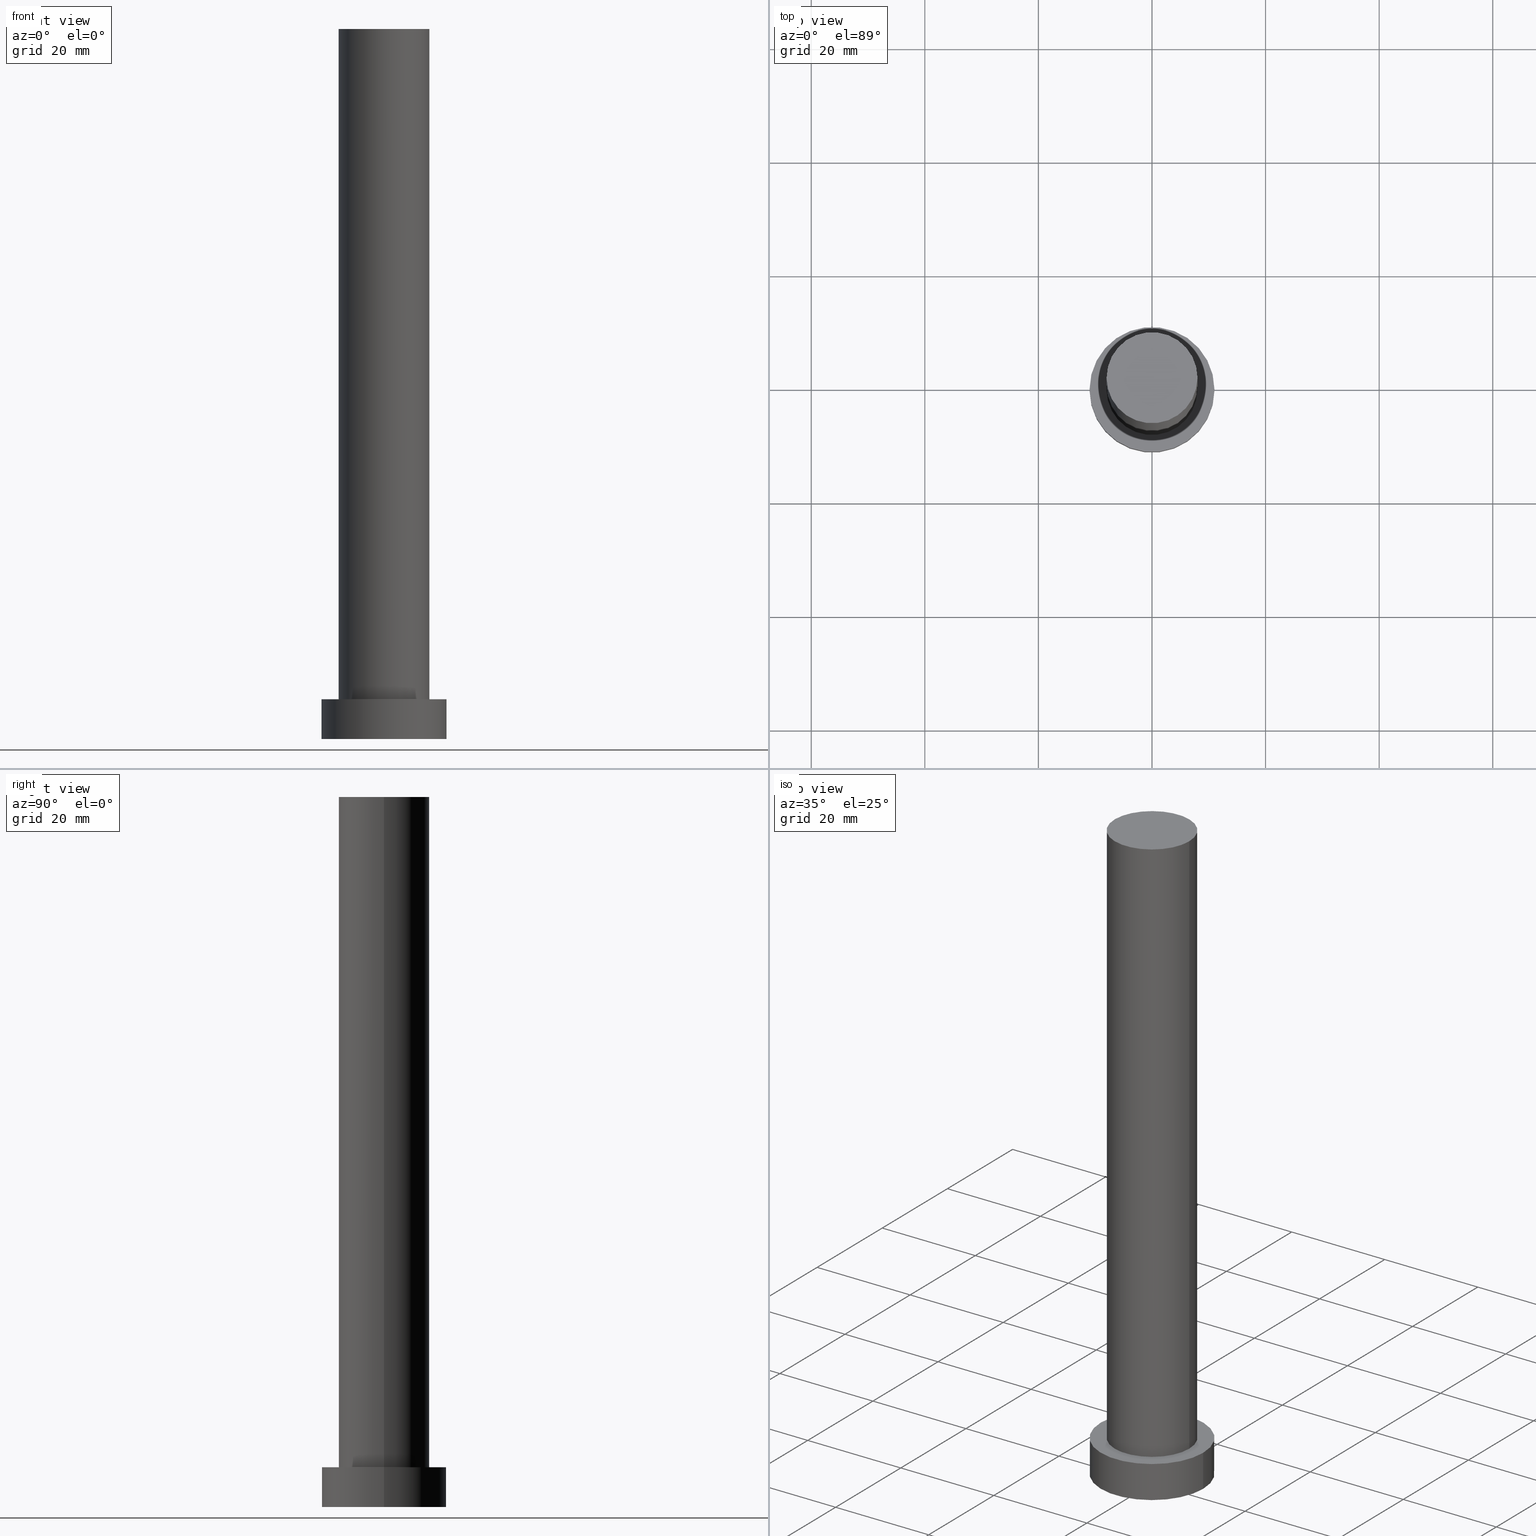
[diagram: canonical four-view strip — front | top / right | iso, engineering-drawing reading convention]
A machine part, canonical four-view strip (front | top / right | iso — engineering-drawing reading convention). The complete STEP part file that produces these views, byte-faithful:
ISO-10303-21;
HEADER;
FILE_DESCRIPTION (( 'STEP AP203' ),
    '1' );
FILE_NAME ('8c6f.STEP',
    '2023-02-13T09:21:37',
    ( '' ),
    ( '' ),
    'SwSTEP 2.0',
    'SolidWorks 2019',
    '' );
FILE_SCHEMA (( 'CONFIG_CONTROL_DESIGN' ));
ENDSEC;

DATA;
#1 = CARTESIAN_POINT ( 'NONE',  ( 0.000000000000000000, 0.000000000000000000, 0.000000000000000000 ) ) ;
#2 = VERTEX_POINT ( 'NONE', #116 ) ;
#3 = APPLICATION_CONTEXT ( 'configuration controlled 3d designs of mechanical parts and assemblies' ) ;
#4 = EDGE_CURVE ( 'NONE', #165, #127, #247, .T. ) ;
#5 =( NAMED_UNIT ( * ) SI_UNIT ( $, .STERADIAN. ) SOLID_ANGLE_UNIT ( ) );
#6 = DIRECTION ( 'NONE',  ( 1.000000000000000000, 0.000000000000000000, 0.000000000000000000 ) ) ;
#7 = DIRECTION ( 'NONE',  ( -0.000000000000000000, -0.000000000000000000, -1.000000000000000000 ) ) ;
#8 = EDGE_CURVE ( 'NONE', #167, #132, #249, .T. ) ;
#9 = DIRECTION ( 'NONE',  ( -0.000000000000000000, -0.000000000000000000, -1.000000000000000000 ) ) ;
#10 = DATE_AND_TIME ( #53, #186 ) ;
#11 = COORDINATED_UNIVERSAL_TIME_OFFSET ( 1, 0, .AHEAD. ) ;
#12 = ORIENTED_EDGE ( 'NONE', *, *, #8, .T. ) ;
#13 = DIRECTION ( 'NONE',  ( 0.000000000000000000, 0.000000000000000000, 1.000000000000000000 ) ) ;
#14 = PERSON_AND_ORGANIZATION_ROLE ( 'design_owner' ) ;
#15 = AXIS2_PLACEMENT_3D ( 'NONE', #38, #183, #18 ) ;
#16 = ORIENTED_EDGE ( 'NONE', *, *, #153, .F. ) ;
#17 = APPROVAL ( #150, 'NEUR�EN�' ) ;
#18 = DIRECTION ( 'NONE',  ( 1.000000000000000000, 0.000000000000000000, 0.000000000000000000 ) ) ;
#19 = CARTESIAN_POINT ( 'NONE',  ( -8.000000000000000000, 0.000000000000000000, 125.0000000000000000 ) ) ;
#20 = AXIS2_PLACEMENT_3D ( 'NONE', #120, #28, #82 ) ;
#21 = CARTESIAN_POINT ( 'NONE',  ( 0.000000000000000000, 0.000000000000000000, 0.000000000000000000 ) ) ;
#22 = CIRCLE ( 'NONE', #20, 8.000000000000000000 ) ;
#23 = ORIENTED_EDGE ( 'NONE', *, *, #246, .F. ) ;
#24 = EDGE_CURVE ( 'NONE', #165, #2, #95, .T. ) ;
#25 = LOCAL_TIME ( 10, 21, 37.00000000000000000, #216 ) ;
#26 = CC_DESIGN_PERSON_AND_ORGANIZATION_ASSIGNMENT ( #152, #193, ( #90 ) ) ;
#27 = DATE_AND_TIME ( #64, #25 ) ;
#28 = DIRECTION ( 'NONE',  ( 0.000000000000000000, 0.000000000000000000, 1.000000000000000000 ) ) ;
#29 = EDGE_LOOP ( 'NONE', ( #151, #23, #253, #189 ) ) ;
#30 = PERSON_AND_ORGANIZATION_ROLE ( 'design_supplier' ) ;
#31 = EDGE_LOOP ( 'NONE', ( #85, #215 ) ) ;
#32 = PERSON_AND_ORGANIZATION ( #225, #98 ) ;
#33 = DIRECTION ( 'NONE',  ( 1.000000000000000000, 0.000000000000000000, -0.000000000000000000 ) ) ;
#34 = DATE_AND_TIME ( #255, #76 ) ;
#35 = DIRECTION ( 'NONE',  ( 1.000000000000000000, 0.000000000000000000, 0.000000000000000000 ) ) ;
#36 = AXIS2_PLACEMENT_3D ( 'NONE', #77, #164, #35 ) ;
#37 = DIRECTION ( 'NONE',  ( -0.000000000000000000, -0.000000000000000000, -1.000000000000000000 ) ) ;
#38 = CARTESIAN_POINT ( 'NONE',  ( 0.000000000000000000, 0.000000000000000000, 7.000000000000000000 ) ) ;
#39 = DIRECTION ( 'NONE',  ( 0.000000000000000000, 0.000000000000000000, 1.000000000000000000 ) ) ;
#40 = DIRECTION ( 'NONE',  ( 1.000000000000000000, 0.000000000000000000, 0.000000000000000000 ) ) ;
#41 = AXIS2_PLACEMENT_3D ( 'NONE', #71, #68, #134 ) ;
#42 = CARTESIAN_POINT ( 'NONE',  ( 11.00000000000000000, 1.347111479062088405E-15, 7.000000000000000000 ) ) ;
#43 = EDGE_CURVE ( 'NONE', #192, #127, #130, .T. ) ;
#44 = PERSON_AND_ORGANIZATION ( #225, #98 ) ;
#45 = DIRECTION ( 'NONE',  ( 1.000000000000000000, 0.000000000000000000, 0.000000000000000000 ) ) ;
#46 = ORIENTED_EDGE ( 'NONE', *, *, #4, .T. ) ;
#47 = APPROVAL_DATE_TIME ( #200, #242 ) ;
#48 = VECTOR ( 'NONE', #7, 1000.000000000000000 ) ;
#49 = EDGE_CURVE ( 'NONE', #132, #55, #22, .T. ) ;
#50 = EDGE_LOOP ( 'NONE', ( #16, #12, #100, #105 ) ) ;
#51 = SHAPE_DEFINITION_REPRESENTATION ( #59, #148 ) ;
#52 = DIRECTION ( 'NONE',  ( 1.000000000000000000, 0.000000000000000000, 0.000000000000000000 ) ) ;
#53 = CALENDAR_DATE ( 2023, 13, 2 ) ;
#54 = SECURITY_CLASSIFICATION_LEVEL ( 'unclassified' ) ;
#55 = VERTEX_POINT ( 'NONE', #177 ) ;
#56 = CARTESIAN_POINT ( 'NONE',  ( 0.000000000000000000, 0.000000000000000000, 0.000000000000000000 ) ) ;
#57 = CC_DESIGN_PERSON_AND_ORGANIZATION_ASSIGNMENT ( #197, #30, ( #115 ) ) ;
#58 = SECURITY_CLASSIFICATION ( '', '', #54 ) ;
#59 = PRODUCT_DEFINITION_SHAPE ( 'NONE', 'NONE',  #90 ) ;
#60 = DIRECTION ( 'NONE',  ( 0.000000000000000000, 0.000000000000000000, 1.000000000000000000 ) ) ;
#61 = CARTESIAN_POINT ( 'NONE',  ( 8.000000000000000000, 9.797174393178825657E-16, 125.0000000000000000 ) ) ;
#62 = APPLICATION_PROTOCOL_DEFINITION ( 'international standard', 'config_control_design', 1994, #78 ) ;
#63 = ORIENTED_EDGE ( 'NONE', *, *, #43, .T. ) ;
#64 = CALENDAR_DATE ( 2023, 13, 2 ) ;
#65 = AXIS2_PLACEMENT_3D ( 'NONE', #108, #109, #6 ) ;
#66 = ADVANCED_FACE ( 'NONE', ( #179 ), #67, .T. ) ;
#67 = CYLINDRICAL_SURFACE ( 'NONE', #235, 8.000000000000000000 ) ;
#68 = DIRECTION ( 'NONE',  ( -0.000000000000000000, -0.000000000000000000, -1.000000000000000000 ) ) ;
#69 = CLOSED_SHELL ( 'NONE', ( #66, #220, #111, #131, #119, #222, #72 ) ) ;
#70 = ORIENTED_EDGE ( 'NONE', *, *, #4, .F. ) ;
#71 = CARTESIAN_POINT ( 'NONE',  ( 0.000000000000000000, 0.000000000000000000, 7.000000000000000000 ) ) ;
#72 = ADVANCED_FACE ( 'NONE', ( #107 ), #122, .T. ) ;
#73 = VECTOR ( 'NONE', #117, 1000.000000000000000 ) ;
#74 = DIRECTION ( 'NONE',  ( 1.000000000000000000, 0.000000000000000000, 0.000000000000000000 ) ) ;
#75 = DIRECTION ( 'NONE',  ( -0.000000000000000000, -0.000000000000000000, -1.000000000000000000 ) ) ;
#76 = LOCAL_TIME ( 10, 21, 37.00000000000000000, #174 ) ;
#77 = CARTESIAN_POINT ( 'NONE',  ( 0.000000000000000000, 0.000000000000000000, 125.0000000000000000 ) ) ;
#78 = APPLICATION_CONTEXT ( 'configuration controlled 3d designs of mechanical parts and assemblies' ) ;
#79 = EDGE_LOOP ( 'NONE', ( #70, #209, #149, #63 ) ) ;
#80 = AXIS2_PLACEMENT_3D ( 'NONE', #233, #214, #33 ) ;
#81 = DATE_AND_TIME ( #84, #118 ) ;
#82 = DIRECTION ( 'NONE',  ( 1.000000000000000000, 0.000000000000000000, 0.000000000000000000 ) ) ;
#83 = EDGE_CURVE ( 'NONE', #127, #192, #156, .T. ) ;
#84 = CALENDAR_DATE ( 2023, 13, 2 ) ;
#85 = ORIENTED_EDGE ( 'NONE', *, *, #212, .F. ) ;
#86 = APPROVAL_DATE_TIME ( #81, #178 ) ;
#87 = MECHANICAL_CONTEXT ( 'NONE', #3, 'mechanical' ) ;
#88 = AXIS2_PLACEMENT_3D ( 'NONE', #89, #206, #138 ) ;
#89 = CARTESIAN_POINT ( 'NONE',  ( 0.000000000000000000, 0.000000000000000000, 7.000000000000000000 ) ) ;
#90 = PRODUCT_DEFINITION ( 'NEZN�M�', '', #115, #99 ) ;
#91 =( NAMED_UNIT ( * ) PLANE_ANGLE_UNIT ( ) SI_UNIT ( $, .RADIAN. ) );
#92 = CYLINDRICAL_SURFACE ( 'NONE', #41, 11.00000000000000000 ) ;
#93 = DIRECTION ( 'NONE',  ( 0.000000000000000000, 0.000000000000000000, 1.000000000000000000 ) ) ;
#94 = PLANE ( 'NONE',  #88 ) ;
#95 = CIRCLE ( 'NONE', #168, 11.00000000000000000 ) ;
#96 = CC_DESIGN_SECURITY_CLASSIFICATION ( #58, ( #115 ) ) ;
#97 = EDGE_CURVE ( 'NONE', #143, #55, #162, .T. ) ;
#98 = ORGANIZATION ( 'NEUR�EN�', 'NEUR�EN�', '' ) ;
#99 = DESIGN_CONTEXT ( 'detailed design', #78, 'design' ) ;
#100 = ORIENTED_EDGE ( 'NONE', *, *, #49, .T. ) ;
#101 = CARTESIAN_POINT ( 'NONE',  ( 0.000000000000000000, 0.000000000000000000, 7.000000000000000000 ) ) ;
#102 = VECTOR ( 'NONE', #75, 1000.000000000000000 ) ;
#103 = EDGE_LOOP ( 'NONE', ( #207, #227 ) ) ;
#104 = DATE_TIME_ROLE ( 'creation_date' ) ;
#105 = ORIENTED_EDGE ( 'NONE', *, *, #97, .F. ) ;
#106 = CIRCLE ( 'NONE', #126, 8.000000000000000000 ) ;
#107 = FACE_OUTER_BOUND ( 'NONE', #146, .T. ) ;
#108 = CARTESIAN_POINT ( 'NONE',  ( 0.000000000000000000, 0.000000000000000000, 7.000000000000000000 ) ) ;
#109 = DIRECTION ( 'NONE',  ( 0.000000000000000000, 0.000000000000000000, 1.000000000000000000 ) ) ;
#110 = DIRECTION ( 'NONE',  ( -0.000000000000000000, -0.000000000000000000, -1.000000000000000000 ) ) ;
#111 = ADVANCED_FACE ( 'NONE', ( #241 ), #133, .T. ) ;
#112 = CARTESIAN_POINT ( 'NONE',  ( 0.000000000000000000, 0.000000000000000000, 125.0000000000000000 ) ) ;
#113 = FACE_OUTER_BOUND ( 'NONE', #103, .T. ) ;
#114 = LINE ( 'NONE', #187, #48 ) ;
#115 = PRODUCT_DEFINITION_FORMATION_WITH_SPECIFIED_SOURCE ( 'LIBOVOLN�', '', #245, .NOT_KNOWN. ) ;
#116 = CARTESIAN_POINT ( 'NONE',  ( -11.00000000000000000, 0.000000000000000000, 7.000000000000000000 ) ) ;
#117 = DIRECTION ( 'NONE',  ( -0.000000000000000000, -0.000000000000000000, -1.000000000000000000 ) ) ;
#118 = LOCAL_TIME ( 10, 21, 37.00000000000000000, #129 ) ;
#119 = ADVANCED_FACE ( 'NONE', ( #219 ), #202, .F. ) ;
#120 = CARTESIAN_POINT ( 'NONE',  ( 0.000000000000000000, 0.000000000000000000, 7.000000000000000000 ) ) ;
#121 = PERSON_AND_ORGANIZATION ( #225, #98 ) ;
#122 = PLANE ( 'NONE',  #80 ) ;
#123 = ORIENTED_EDGE ( 'NONE', *, *, #43, .F. ) ;
#124 = APPROVAL_STATUS ( 'not_yet_approved' ) ;
#125 = DIRECTION ( 'NONE',  ( -1.000000000000000000, 0.000000000000000000, 0.000000000000000000 ) ) ;
#126 = AXIS2_PLACEMENT_3D ( 'NONE', #236, #39, #74 ) ;
#127 = VERTEX_POINT ( 'NONE', #244 ) ;
#128 = DATE_TIME_ROLE ( 'classification_date' ) ;
#129 = COORDINATED_UNIVERSAL_TIME_OFFSET ( 1, 0, .AHEAD. ) ;
#130 = CIRCLE ( 'NONE', #248, 11.00000000000000000 ) ;
#131 = ADVANCED_FACE ( 'NONE', ( #136, #113 ), #94, .T. ) ;
#132 = VERTEX_POINT ( 'NONE', #224 ) ;
#133 = CYLINDRICAL_SURFACE ( 'NONE', #139, 11.00000000000000000 ) ;
#134 = DIRECTION ( 'NONE',  ( -1.000000000000000000, 0.000000000000000000, 0.000000000000000000 ) ) ;
#135 = CC_DESIGN_APPROVAL ( #17, ( #90 ) ) ;
#136 = FACE_BOUND ( 'NONE', #31, .T. ) ;
#137 = DIRECTION ( 'NONE',  ( -0.000000000000000000, -0.000000000000000000, -1.000000000000000000 ) ) ;
#138 = DIRECTION ( 'NONE',  ( 1.000000000000000000, 0.000000000000000000, -0.000000000000000000 ) ) ;
#139 = AXIS2_PLACEMENT_3D ( 'NONE', #221, #110, #239 ) ;
#140 = AXIS2_PLACEMENT_3D ( 'NONE', #112, #137, #205 ) ;
#141 = EDGE_CURVE ( 'NONE', #2, #192, #114, .T. ) ;
#142 = VECTOR ( 'NONE', #9, 1000.000000000000000 ) ;
#143 = VERTEX_POINT ( 'NONE', #182 ) ;
#144 = DIRECTION ( 'NONE',  ( 1.000000000000000000, 0.000000000000000000, 0.000000000000000000 ) ) ;
#145 = LOCAL_TIME ( 10, 21, 37.00000000000000000, #252 ) ;
#146 = EDGE_LOOP ( 'NONE', ( #229, #180 ) ) ;
#147 = APPROVAL_DATE_TIME ( #10, #17 ) ;
#148 = ADVANCED_BREP_SHAPE_REPRESENTATION ( '8c6f', ( #161, #217 ), #237 ) ;
#149 = ORIENTED_EDGE ( 'NONE', *, *, #141, .T. ) ;
#150 = APPROVAL_STATUS ( 'not_yet_approved' ) ;
#151 = ORIENTED_EDGE ( 'NONE', *, *, #8, .F. ) ;
#152 = PERSON_AND_ORGANIZATION ( #225, #98 ) ;
#153 = EDGE_CURVE ( 'NONE', #167, #143, #232, .T. ) ;
#154 = CALENDAR_DATE ( 2023, 13, 2 ) ;
#155 = CARTESIAN_POINT ( 'NONE',  ( 0.000000000000000000, 0.000000000000000000, 125.0000000000000000 ) ) ;
#156 = CIRCLE ( 'NONE', #194, 11.00000000000000000 ) ;
#157 = PRODUCT_RELATED_PRODUCT_CATEGORY ( 'detail', '', ( #245 ) ) ;
#158 = ORIENTED_EDGE ( 'NONE', *, *, #83, .F. ) ;
#159 = APPROVAL_PERSON_ORGANIZATION ( #234, #178, #176 ) ;
#160 = CYLINDRICAL_SURFACE ( 'NONE', #140, 8.000000000000000000 ) ;
#161 = MANIFOLD_SOLID_BREP ( 'P�idat vysunut�m3', #69 ) ;
#162 = LINE ( 'NONE', #19, #102 ) ;
#163 = CC_DESIGN_APPROVAL ( #178, ( #115 ) ) ;
#164 = DIRECTION ( 'NONE',  ( 0.000000000000000000, 0.000000000000000000, 1.000000000000000000 ) ) ;
#165 = VERTEX_POINT ( 'NONE', #199 ) ;
#166 = CIRCLE ( 'NONE', #15, 11.00000000000000000 ) ;
#167 = VERTEX_POINT ( 'NONE', #218 ) ;
#168 = AXIS2_PLACEMENT_3D ( 'NONE', #101, #60, #144 ) ;
#169 = ORIENTED_EDGE ( 'NONE', *, *, #141, .F. ) ;
#170 = APPROVAL_STATUS ( 'not_yet_approved' ) ;
#171 = APPROVAL_ROLE ( '' ) ;
#172 = EDGE_LOOP ( 'NONE', ( #123, #158 ) ) ;
#173 = PERSON_AND_ORGANIZATION ( #225, #98 ) ;
#174 = COORDINATED_UNIVERSAL_TIME_OFFSET ( 1, 0, .AHEAD. ) ;
#175 = CIRCLE ( 'NONE', #65, 8.000000000000000000 ) ;
#176 = APPROVAL_ROLE ( '' ) ;
#177 = CARTESIAN_POINT ( 'NONE',  ( -8.000000000000000000, 0.000000000000000000, 7.000000000000000000 ) ) ;
#178 = APPROVAL ( #170, 'NEUR�EN�' ) ;
#179 = FACE_OUTER_BOUND ( 'NONE', #50, .T. ) ;
#180 = ORIENTED_EDGE ( 'NONE', *, *, #153, .T. ) ;
#181 = CARTESIAN_POINT ( 'NONE',  ( -11.00000000000000000, 0.000000000000000000, 0.000000000000000000 ) ) ;
#182 = CARTESIAN_POINT ( 'NONE',  ( -8.000000000000000000, 0.000000000000000000, 125.0000000000000000 ) ) ;
#183 = DIRECTION ( 'NONE',  ( 0.000000000000000000, 0.000000000000000000, 1.000000000000000000 ) ) ;
#184 = DIRECTION ( 'NONE',  ( 1.000000000000000000, 0.000000000000000000, -0.000000000000000000 ) ) ;
#185 = APPLICATION_PROTOCOL_DEFINITION ( 'international standard', 'config_control_design', 1994, #3 ) ;
#186 = LOCAL_TIME ( 10, 21, 37.00000000000000000, #11 ) ;
#187 = CARTESIAN_POINT ( 'NONE',  ( -11.00000000000000000, 0.000000000000000000, 7.000000000000000000 ) ) ;
#188 = CC_DESIGN_DATE_AND_TIME_ASSIGNMENT ( #34, #128, ( #58 ) ) ;
#189 = ORIENTED_EDGE ( 'NONE', *, *, #212, .T. ) ;
#190 = EDGE_CURVE ( 'NONE', #2, #165, #166, .T. ) ;
#191 = UNCERTAINTY_MEASURE_WITH_UNIT (LENGTH_MEASURE( 1.000000000000000082E-05 ), #201, 'distance_accuracy_value', 'NONE');
#192 = VERTEX_POINT ( 'NONE', #181 ) ;
#193 = PERSON_AND_ORGANIZATION_ROLE ( 'creator' ) ;
#194 = AXIS2_PLACEMENT_3D ( 'NONE', #1, #13, #52 ) ;
#195 = CARTESIAN_POINT ( 'NONE',  ( 0.000000000000000000, 0.000000000000000000, 0.000000000000000000 ) ) ;
#196 = ORIENTED_EDGE ( 'NONE', *, *, #24, .F. ) ;
#197 = PERSON_AND_ORGANIZATION ( #225, #98 ) ;
#198 = CC_DESIGN_PERSON_AND_ORGANIZATION_ASSIGNMENT ( #44, #14, ( #245 ) ) ;
#199 = CARTESIAN_POINT ( 'NONE',  ( 11.00000000000000000, 1.347111479062088405E-15, 7.000000000000000000 ) ) ;
#200 = DATE_AND_TIME ( #154, #145 ) ;
#201 =( LENGTH_UNIT ( ) NAMED_UNIT ( * ) SI_UNIT ( .MILLI., .METRE. ) );
#202 = PLANE ( 'NONE',  #211 ) ;
#203 = CC_DESIGN_PERSON_AND_ORGANIZATION_ASSIGNMENT ( #121, #251, ( #115 ) ) ;
#204 = FACE_OUTER_BOUND ( 'NONE', #213, .T. ) ;
#205 = DIRECTION ( 'NONE',  ( -1.000000000000000000, 0.000000000000000000, 0.000000000000000000 ) ) ;
#206 = DIRECTION ( 'NONE',  ( 0.000000000000000000, 0.000000000000000000, 1.000000000000000000 ) ) ;
#207 = ORIENTED_EDGE ( 'NONE', *, *, #190, .T. ) ;
#208 = CC_DESIGN_APPROVAL ( #242, ( #58 ) ) ;
#209 = ORIENTED_EDGE ( 'NONE', *, *, #190, .F. ) ;
#210 = PERSON_AND_ORGANIZATION ( #225, #98 ) ;
#211 = AXIS2_PLACEMENT_3D ( 'NONE', #21, #93, #184 ) ;
#212 = EDGE_CURVE ( 'NONE', #55, #132, #175, .T. ) ;
#213 = EDGE_LOOP ( 'NONE', ( #196, #46, #250, #169 ) ) ;
#214 = DIRECTION ( 'NONE',  ( 0.000000000000000000, 0.000000000000000000, 1.000000000000000000 ) ) ;
#215 = ORIENTED_EDGE ( 'NONE', *, *, #49, .F. ) ;
#216 = COORDINATED_UNIVERSAL_TIME_OFFSET ( 1, 0, .AHEAD. ) ;
#217 = AXIS2_PLACEMENT_3D ( 'NONE', #56, #223, #40 ) ;
#218 = CARTESIAN_POINT ( 'NONE',  ( 8.000000000000000000, 9.797174393178825657E-16, 125.0000000000000000 ) ) ;
#219 = FACE_OUTER_BOUND ( 'NONE', #172, .T. ) ;
#220 = ADVANCED_FACE ( 'NONE', ( #204 ), #92, .T. ) ;
#221 = CARTESIAN_POINT ( 'NONE',  ( 0.000000000000000000, 0.000000000000000000, 7.000000000000000000 ) ) ;
#222 = ADVANCED_FACE ( 'NONE', ( #240 ), #160, .T. ) ;
#223 = DIRECTION ( 'NONE',  ( 0.000000000000000000, 0.000000000000000000, 1.000000000000000000 ) ) ;
#224 = CARTESIAN_POINT ( 'NONE',  ( 8.000000000000000000, 9.797174393178825657E-16, 7.000000000000000000 ) ) ;
#225 = PERSON ( 'NEUR�EN�', 'NEUR�EN�', 'NEUR�EN�', ('NEUR�EN�'), ('NEUR�EN�'), ('NEUR�EN�') ) ;
#226 = DIRECTION ( 'NONE',  ( 0.000000000000000000, 0.000000000000000000, 1.000000000000000000 ) ) ;
#227 = ORIENTED_EDGE ( 'NONE', *, *, #24, .T. ) ;
#228 = CC_DESIGN_PERSON_AND_ORGANIZATION_ASSIGNMENT ( #210, #231, ( #58 ) ) ;
#229 = ORIENTED_EDGE ( 'NONE', *, *, #246, .T. ) ;
#230 = APPROVAL_ROLE ( '' ) ;
#231 = PERSON_AND_ORGANIZATION_ROLE ( 'classification_officer' ) ;
#232 = CIRCLE ( 'NONE', #36, 8.000000000000000000 ) ;
#233 = CARTESIAN_POINT ( 'NONE',  ( 0.000000000000000000, 0.000000000000000000, 125.0000000000000000 ) ) ;
#234 = PERSON_AND_ORGANIZATION ( #225, #98 ) ;
#235 = AXIS2_PLACEMENT_3D ( 'NONE', #155, #37, #125 ) ;
#236 = CARTESIAN_POINT ( 'NONE',  ( 0.000000000000000000, 0.000000000000000000, 125.0000000000000000 ) ) ;
#237 =( GEOMETRIC_REPRESENTATION_CONTEXT ( 3 ) GLOBAL_UNCERTAINTY_ASSIGNED_CONTEXT ( ( #191 ) ) GLOBAL_UNIT_ASSIGNED_CONTEXT ( ( #201, #91, #5 ) ) REPRESENTATION_CONTEXT ( 'NONE', 'WORKASPACE' ) );
#238 = CC_DESIGN_DATE_AND_TIME_ASSIGNMENT ( #27, #104, ( #90 ) ) ;
#239 = DIRECTION ( 'NONE',  ( -1.000000000000000000, 0.000000000000000000, 0.000000000000000000 ) ) ;
#240 = FACE_OUTER_BOUND ( 'NONE', #29, .T. ) ;
#241 = FACE_OUTER_BOUND ( 'NONE', #79, .T. ) ;
#242 = APPROVAL ( #124, 'NEUR�EN�' ) ;
#243 = APPROVAL_PERSON_ORGANIZATION ( #173, #242, #171 ) ;
#244 = CARTESIAN_POINT ( 'NONE',  ( 11.00000000000000000, 1.347111479062088405E-15, 0.000000000000000000 ) ) ;
#245 = PRODUCT ( '8c6f', '8c6f', '', ( #87 ) ) ;
#246 = EDGE_CURVE ( 'NONE', #143, #167, #106, .T. ) ;
#247 = LINE ( 'NONE', #42, #73 ) ;
#248 = AXIS2_PLACEMENT_3D ( 'NONE', #195, #226, #45 ) ;
#249 = LINE ( 'NONE', #61, #142 ) ;
#250 = ORIENTED_EDGE ( 'NONE', *, *, #83, .T. ) ;
#251 = PERSON_AND_ORGANIZATION_ROLE ( 'creator' ) ;
#252 = COORDINATED_UNIVERSAL_TIME_OFFSET ( 1, 0, .AHEAD. ) ;
#253 = ORIENTED_EDGE ( 'NONE', *, *, #97, .T. ) ;
#254 = APPROVAL_PERSON_ORGANIZATION ( #32, #17, #230 ) ;
#255 = CALENDAR_DATE ( 2023, 13, 2 ) ;
ENDSEC;
END-ISO-10303-21;
